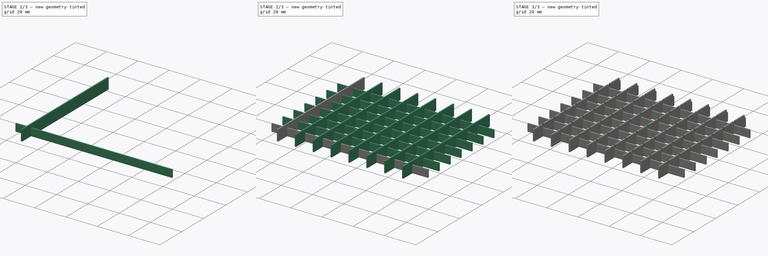
[diagram: build sequence overview — one tinted view per stage of 3, left to right]
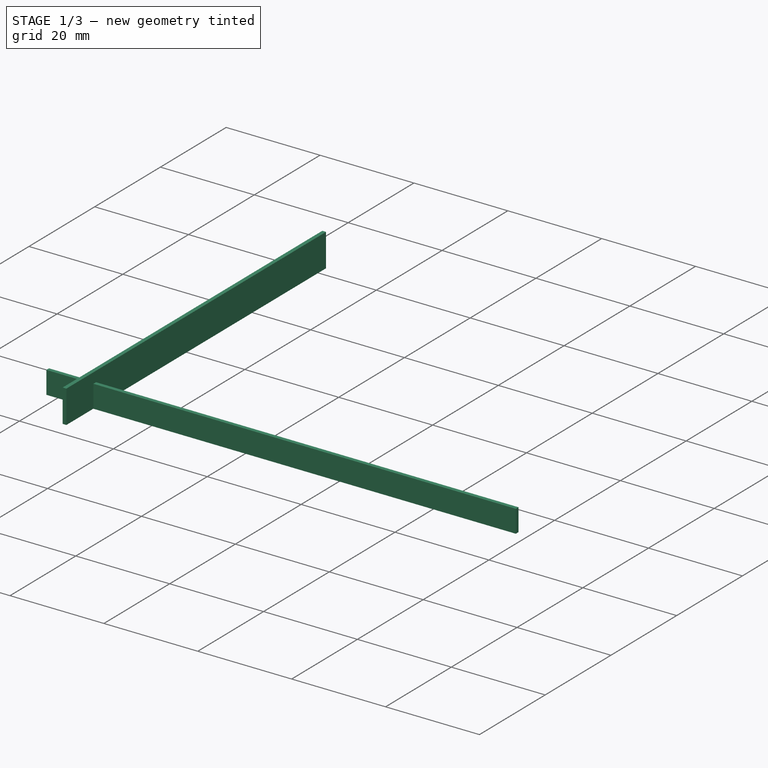
[diagram: stage 1 of 3 — iso view after this stage's code; geometry added in this stage tinted green]
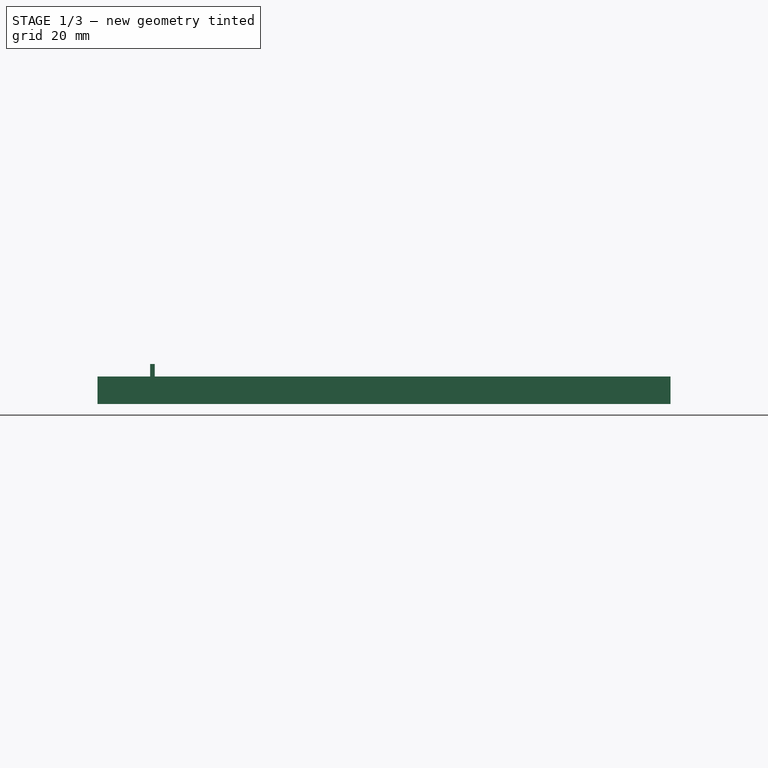
[diagram: stage 1 of 3 — front view after this stage's code; geometry added in this stage tinted green]
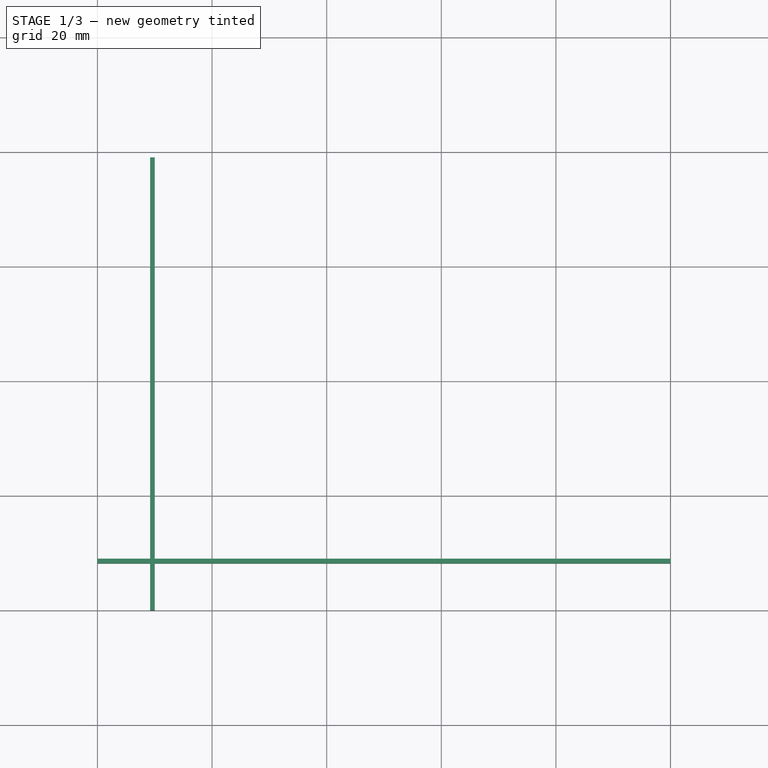
[diagram: stage 1 of 3 — top view after this stage's code; geometry added in this stage tinted green]
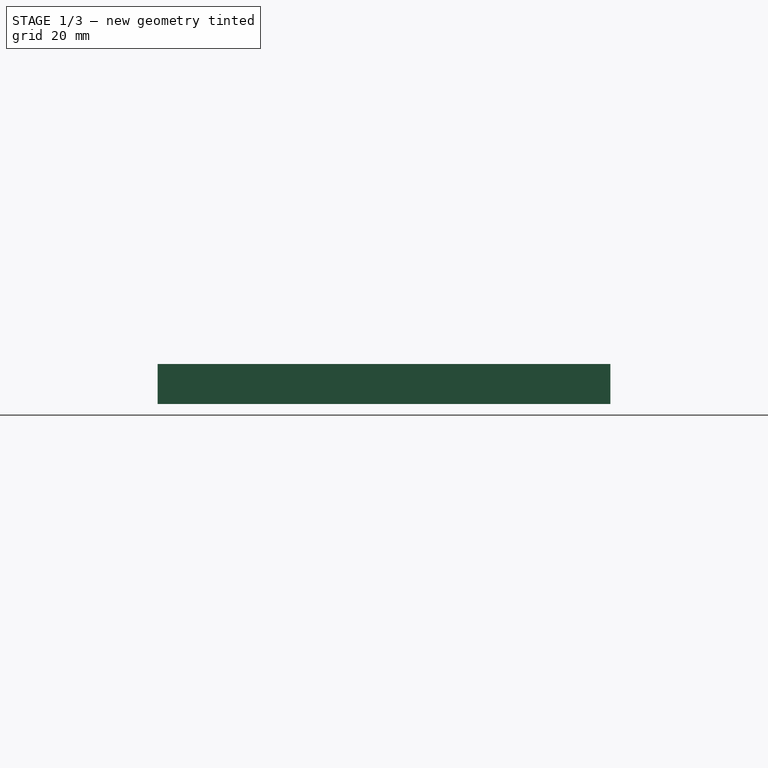
[diagram: stage 1 of 3 — right view after this stage's code; geometry added in this stage tinted green]
FCSTD DOCUMENT  (FreeCAD 0.18.4R)
Label: Grid
License: All rights reserved
LicenseURL: http://en.wikipedia.org/wiki/All_rights_reserved
objects: Sketcher::SketchObject×3, PartDesign::LinearPattern×3, PartDesign::Pad×2, Spreadsheet::Sheet×1, PartDesign::Pocket×1, PartDesign::Body×1, App::Part×1
note: 13 computed .brp shape members not serialized (recipe doc carries the construction recipe); baked Part::Feature solids carry a one-line shape summary decoded from their .brp

FEATURE [Spreadsheet::Sheet] Spreadsheet  label="Paramètres"
  cells = A1=Nb cases verticales; B1=8; A2=Nb cases horizontales; B2=10; A3=Espacement; B3==10mm; A4=Epaisseur cloison; B4==0.8mm; A5=Hauteur cloison; B5==6mm; A7=Pièce de gauche; B7=0; A8=Pièce du haut; B8=0
FEATURE [Sketcher::SketchObject] Sketch003  label="Cloison vert"
  MapMode = 5
  Support = -> [XY_Plane005]
  expr: Constraints[11] = Paramètres.B3 - Paramètres.B4
  expr: Constraints[10] = Paramètres.B1 * Paramètres.B3 - 1mm
  expr: Constraints[9] = Paramètres.B4
  sketch-geometry (4):
    g0: LineSegment StartX=9.2 StartY=0 StartZ=0 EndX=10 EndY=0 EndZ=0
    g1: LineSegment StartX=10 StartY=0 StartZ=0 EndX=10 EndY=79 EndZ=0
    g2: LineSegment StartX=10 StartY=79 StartZ=0 EndX=9.2 EndY=79 EndZ=0
    g3: LineSegment StartX=9.2 StartY=79 StartZ=0 EndX=9.2 EndY=0 EndZ=0
  constraints (12):
    c: Coincident(g0,g1)
    c: Coincident(g1,g2)
    c: Coincident(g2,g3)
    c: Coincident(g3,g0)
    c: Horizontal(g0)
    c: Horizontal(g2)
    c: Vertical(g1)
    c: Vertical(g3)
    c: Horizontal(g0,g-1)
    c: DistanceX(g0,g0) = 0.8
    c: DistanceY(g3,g3) = 79
    c: DistanceX(g-1,g0) = 9.2
FEATURE [PartDesign::Pad] Pad  label="Cloison verti001"
  Length = 7
  Length2 = 100
  Profile = -> Sketch003
  Type = 0
  expr: Length = Paramètres.B5 + 1mm
FEATURE [Sketcher::SketchObject] Sketch004  label="Cloison horiz001"
  MapMode = 5
  Placement = pos=(0,0,0) rot=(1,0,0;3.14159rad)
  Support = -> [Pad]
  expr: Constraints[11] = Paramètres.B3 - Paramètres.B4 - 1mm
  expr: Constraints[10] = Paramètres.B2 * Paramètres.B3
  expr: Constraints[9] = Paramètres.B4
  sketch-geometry (4):
    g0: LineSegment StartX=0 StartY=-8.2 StartZ=0 EndX=100 EndY=-8.2 EndZ=0
    g1: LineSegment StartX=100 StartY=-8.2 StartZ=0 EndX=100 EndY=-9 EndZ=0
    g2: LineSegment StartX=100 StartY=-9 StartZ=0 EndX=0 EndY=-9 EndZ=0
    g3: LineSegment StartX=0 StartY=-9 StartZ=0 EndX=0 EndY=-8.2 EndZ=0
  constraints (12):
    c: Coincident(g0,g1)
    c: Coincident(g1,g2)
    c: Coincident(g2,g3)
    c: Coincident(g3,g0)
    c: Horizontal(g0)
    c: Horizontal(g2)
    c: Vertical(g1)
    c: Vertical(g3)
    c: Vertical(g0,g-1)
    c: DistanceY(g3,g3) = 0.8
    c: DistanceX(g0,g0) = 100
    c: DistanceY(g0,g-1) = 8.2
FEATURE [PartDesign::Pad] Pad003  label="Cloison horiz002"
  BaseFeature = -> Pad
  Length = 4.8
  Length2 = 100
  Profile = -> Sketch004
  Reversed = true
  Type = 0
  expr: Length = Paramètres.B5 - 1.2mm
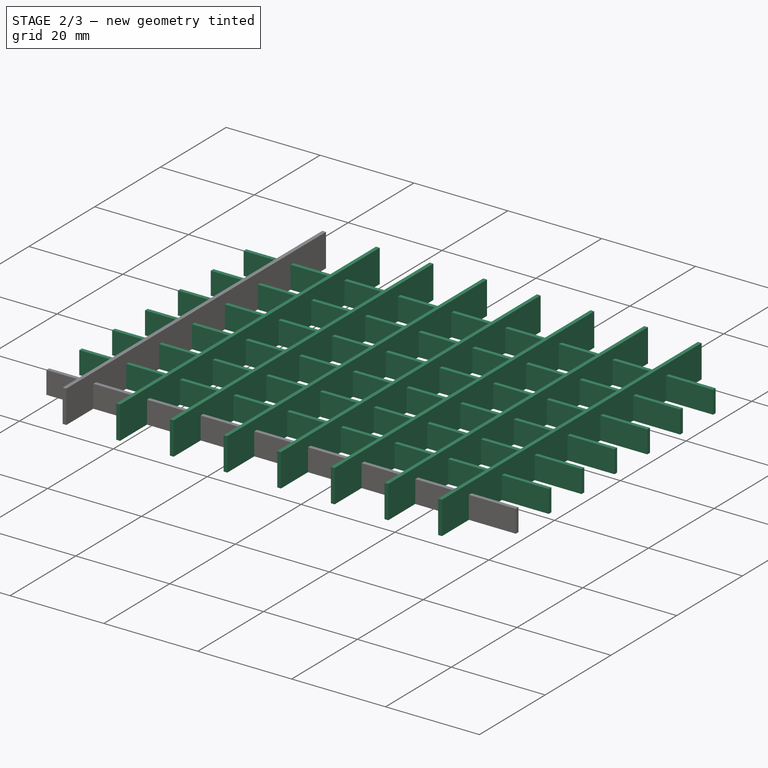
[diagram: stage 2 of 3 — iso view after this stage's code; geometry added in this stage tinted green]
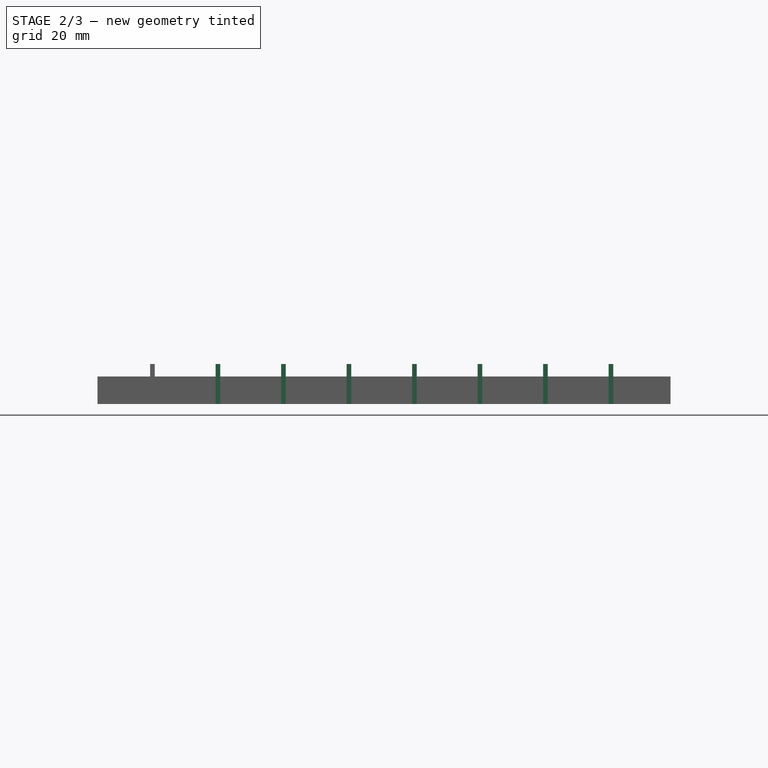
[diagram: stage 2 of 3 — front view after this stage's code; geometry added in this stage tinted green]
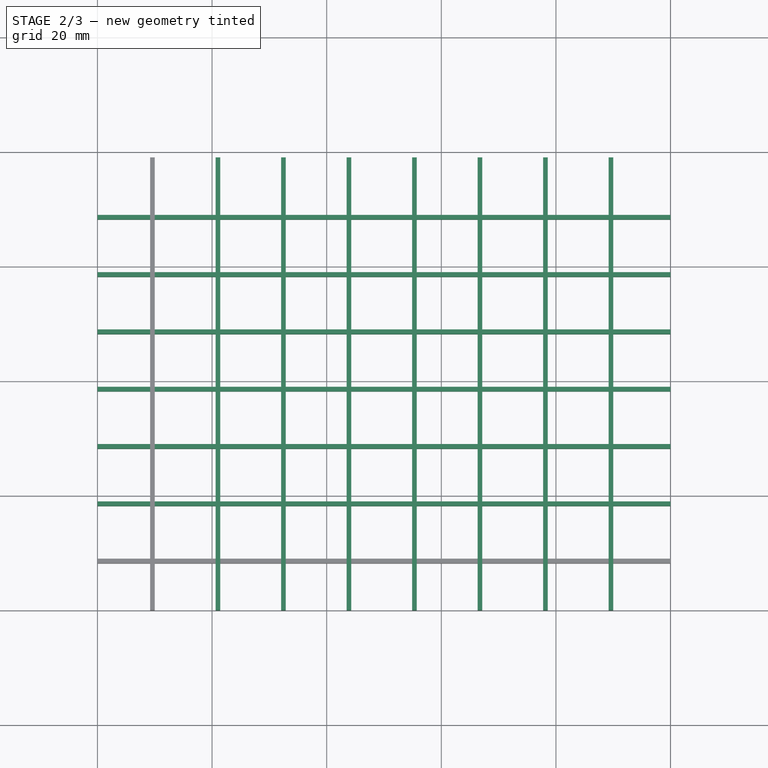
[diagram: stage 2 of 3 — top view after this stage's code; geometry added in this stage tinted green]
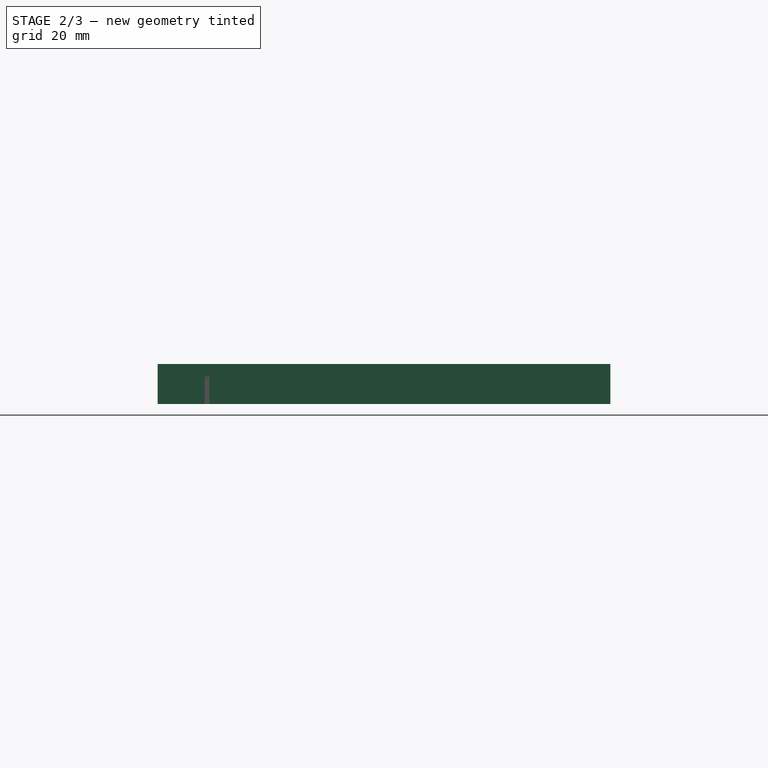
[diagram: stage 2 of 3 — right view after this stage's code; geometry added in this stage tinted green]
FEATURE [PartDesign::LinearPattern] LinearPattern002  label="Répétition horiz001"
  BaseFeature = -> Pad003
  Direction = -> Sketch004 [V_Axis]
  Length = 60
  Occurrences = 7
  Originals = -> [Pad003]
  Reversed = true
  expr: Length = (Paramètres.B1 - 2 + Paramètres.B8) * Paramètres.B3
  expr: Occurrences = Paramètres.B1 + Paramètres.B8 - 1
FEATURE [PartDesign::LinearPattern] LinearPattern003  label="Répétition verti001"
  BaseFeature = -> LinearPattern002
  Direction = -> X_Axis005
  Length = 80
  Occurrences = 8
  Originals = -> [Pad]
  expr: Occurrences = Paramètres.B1 - Paramètres.B8
  expr: Length = (Paramètres.B2 - 2 + Paramètres.B7) * Paramètres.B3
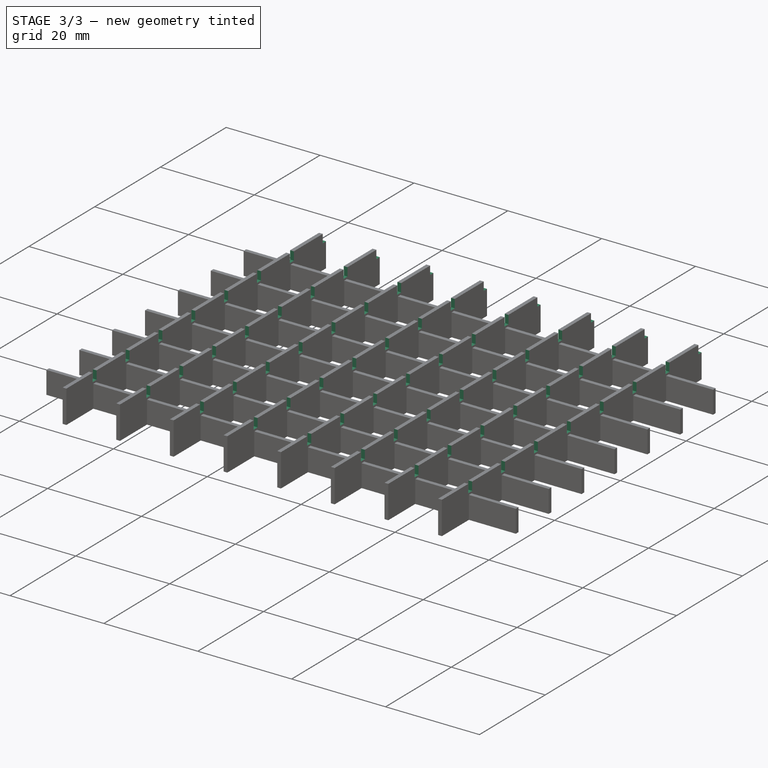
[diagram: stage 3 of 3 — iso view after this stage's code; geometry added in this stage tinted green]
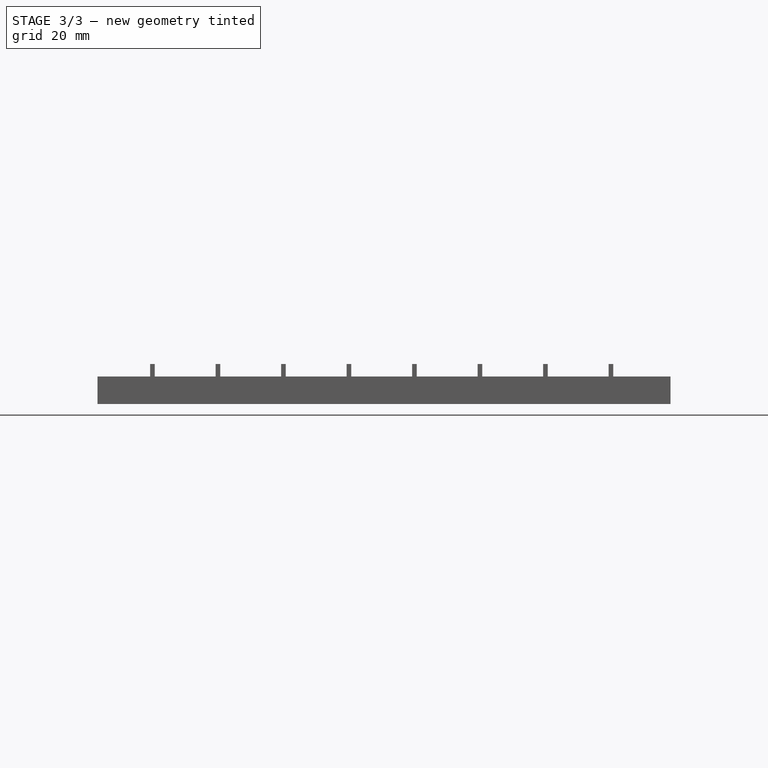
[diagram: stage 3 of 3 — front view after this stage's code; geometry added in this stage tinted green]
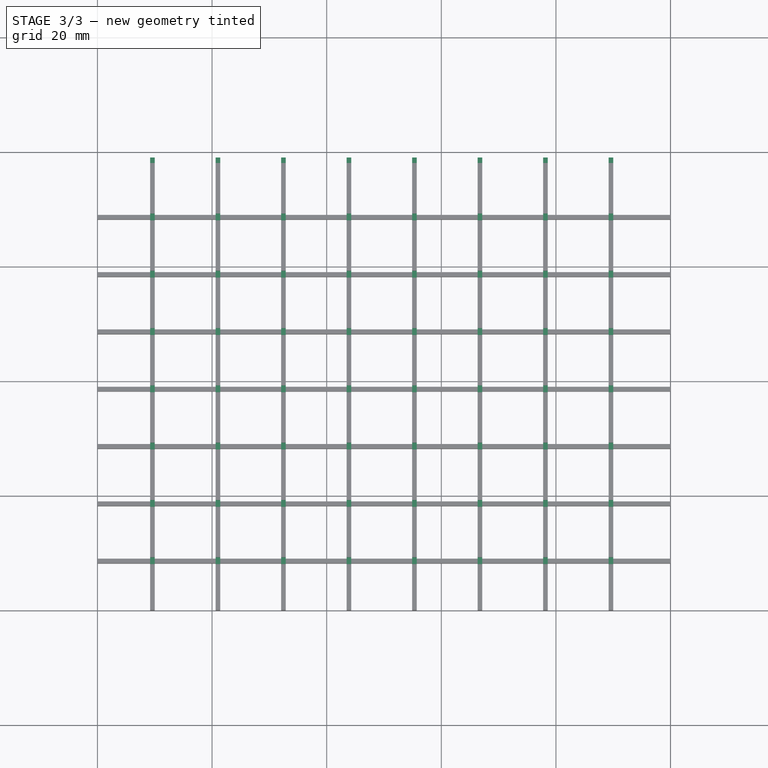
[diagram: stage 3 of 3 — top view after this stage's code; geometry added in this stage tinted green]
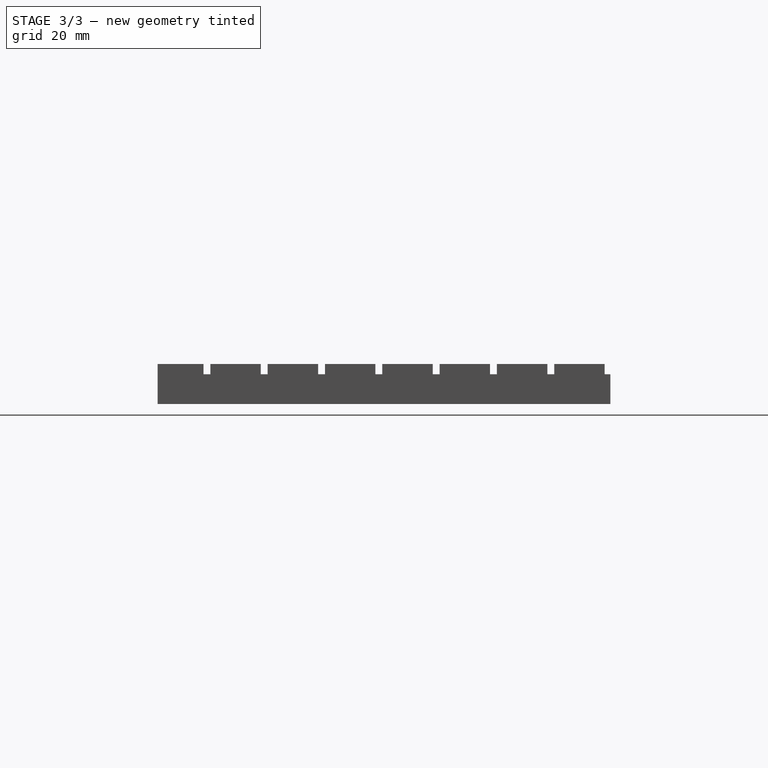
[diagram: stage 3 of 3 — right view after this stage's code; geometry added in this stage tinted green]
FEATURE [Sketcher::SketchObject] Sketch005
  ExternalGeometry = -> [Pad003]
  MapMode = 5
  Placement = pos=(0,0,0) rot=(0.57735,-0.57735,-0.57735;2.0944rad)
  Support = -> [Pad003]
  sketch-geometry (4):
    g0: LineSegment StartX=-9.2 StartY=5.2 StartZ=0 EndX=-8 EndY=5.2 EndZ=0
    g1: LineSegment StartX=-8 StartY=5.2 StartZ=0 EndX=-8 EndY=9.2 EndZ=0
    g2: LineSegment StartX=-8 StartY=9.2 StartZ=0 EndX=-9.2 EndY=9.2 EndZ=0
    g3: LineSegment StartX=-9.2 StartY=9.2 StartZ=0 EndX=-9.2 EndY=5.2 EndZ=0
  constraints (12):
    c: Coincident(g0,g1)
    c: Coincident(g1,g2)
    c: Coincident(g2,g3)
    c: Coincident(g3,g0)
    c: Horizontal(g0)
    c: Horizontal(g2)
    c: Vertical(g1)
    c: Vertical(g3)
    c: DistanceY(g-3,g0) = 0.4
    c: DistanceY(g1,g1) = 4
    c: DistanceX(g0,g-3) = 0.2
    c: DistanceX(g-3,g0) = 0.2
FEATURE [PartDesign::Pocket] Pocket  label="Encoche cloisons verti"
  BaseFeature = -> LinearPattern003
  Length = 5
  Length2 = 100
  Profile = -> Sketch005
  Type = 1
FEATURE [PartDesign::LinearPattern] LinearPattern004  label="Répétition encoches"
  BaseFeature = -> Pocket
  Direction = -> Sketch005 [H_Axis]
  Length = 70
  Occurrences = 8
  Originals = -> [Pocket]
  Reversed = true
  expr: Length = (Paramètres.B1 - 1) * Paramètres.B3
  expr: Occurrences = Paramètres.B1
FEATURE [PartDesign::Body] Body
  Group = -> [Sketch003,Pad,Sketch004,Pad003,LinearPattern002,LinearPattern003,Sketch005,Pocket,LinearPattern004]
  Origin = -> Origin005
  Tip = -> LinearPattern004
FEATURE [App::Part] Part001  label="Grille"
  Group = -> [Body]
  Origin = -> Origin004
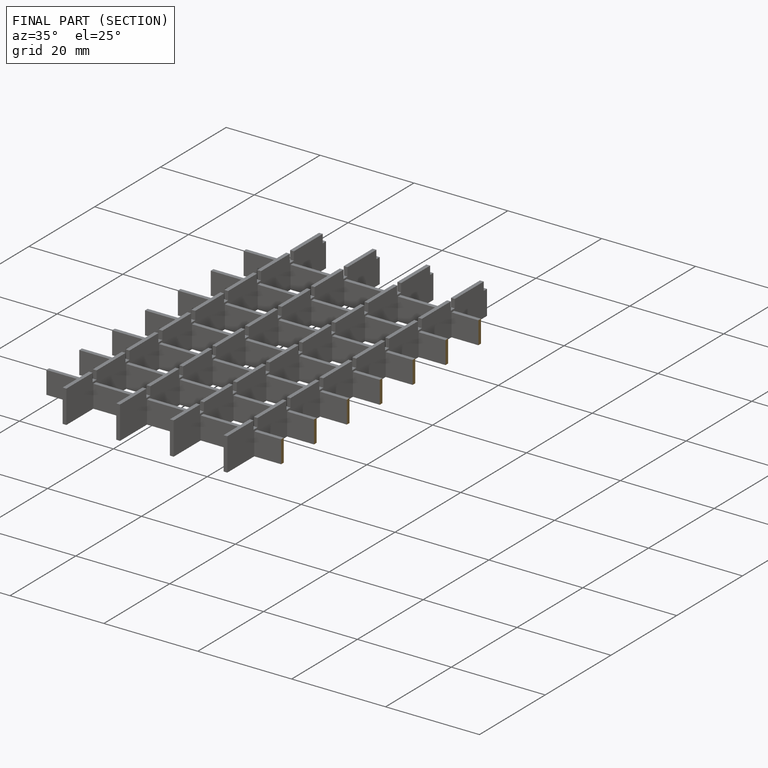
[diagram: finished part — half-section view (interior)]
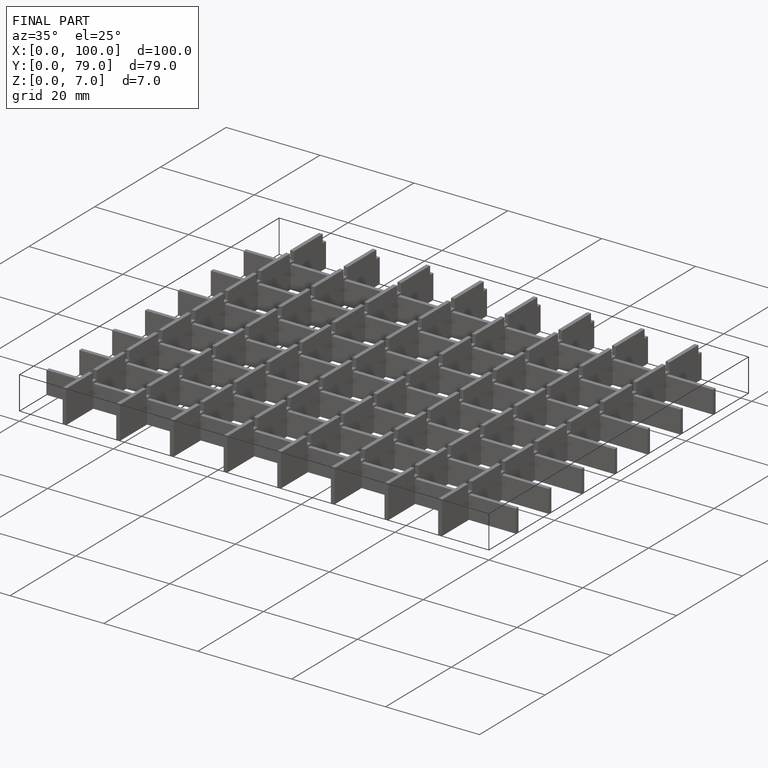
[diagram: finished part — iso view with bounding-box wireframe]
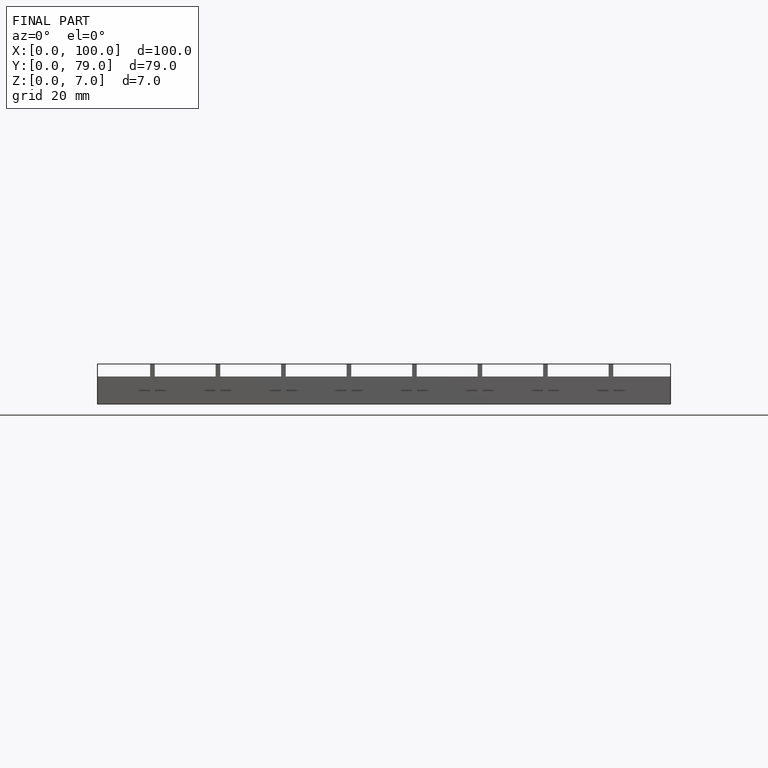
[diagram: finished part — front view with bounding-box wireframe]
